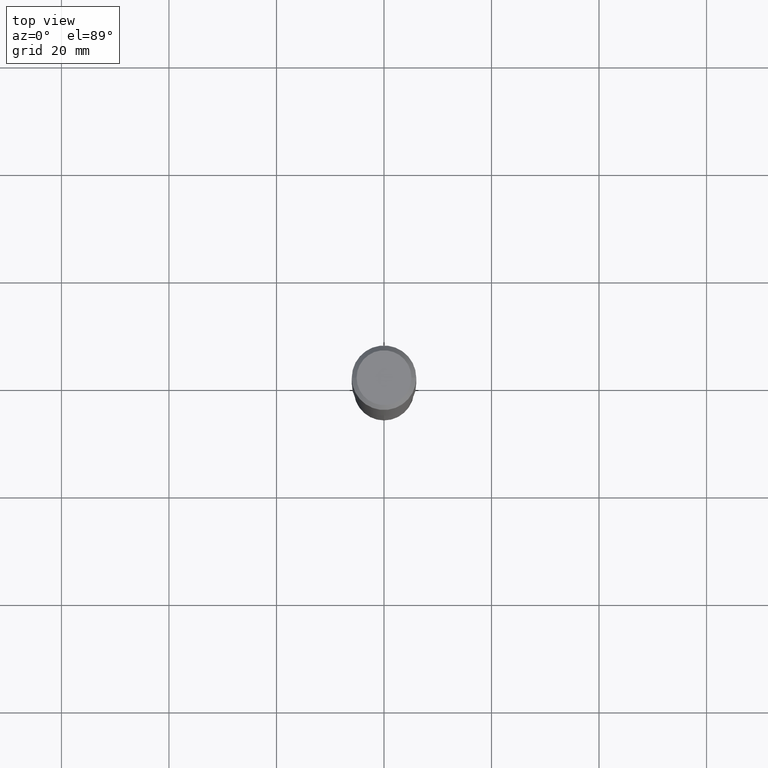
[diagram: clean part render]
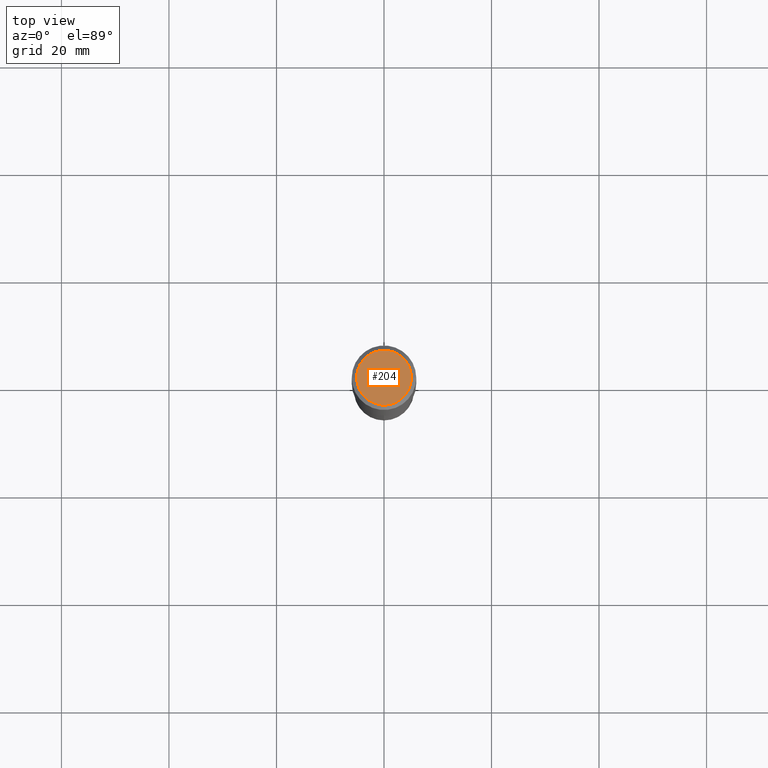
[diagram: same view with one face highlighted and labeled with its STEP entity id]
A machine part, top view. The second image highlights one B-rep face of the part: STEP entity #204.
In plain terms, the highlighted planar face has unit normal (0, -0, -1).
Its self-contained STEP definition (entity closure, byte-faithful):
#26 = ORIENTED_EDGE ( 'NONE', *, *, #423, .T. ) ;
#58 = CIRCLE ( 'NONE', #231, 0.2007700000000000040 ) ;
#61 = DIRECTION ( 'NONE',  ( -2.445468806185136597E-29, 3.491481338843145583E-15, 1.000000000000000000 ) ) ;
#77 = EDGE_CURVE ( 'NONE', #420, #88, #58, .T. ) ;
#84 = CARTESIAN_POINT ( 'NONE',  ( -1.001697619218023151E-46, 1.430158722866391908E-32, 4.096137381448114529E-18 ) ) ;
#88 = VERTEX_POINT ( 'NONE', #468 ) ;
#194 = DIRECTION ( 'NONE',  ( -2.445468806185136597E-29, 3.491481338843145583E-15, 1.000000000000000000 ) ) ;
#204 = ADVANCED_FACE ( 'NONE', ( #211 ), #245, .F. ) ;
#211 = FACE_OUTER_BOUND ( 'NONE', #445, .T. ) ;
#231 = AXIS2_PLACEMENT_3D ( 'NONE', #432, #61, #349 ) ;
#245 = PLANE ( 'NONE',  #359 ) ;
#319 = DIRECTION ( 'NONE',  ( 2.438088387897960049E-29, -3.491481338843145188E-15, -1.000000000000000000 ) ) ;
#337 = CARTESIAN_POINT ( 'NONE',  ( 0.2007700000000000040, -1.560767496960719672E-15, 4.096137381458473721E-18 ) ) ;
#339 = ORIENTED_EDGE ( 'NONE', *, *, #77, .T. ) ;
#349 = DIRECTION ( 'NONE',  ( 1.000000000000000000, -6.982962677686266711E-15, 4.876140833081945105E-29 ) ) ;
#352 = CARTESIAN_POINT ( 'NONE',  ( -5.008488096090115757E-47, 7.150793614331959538E-33, 2.048068690724057264E-18 ) ) ;
#359 = AXIS2_PLACEMENT_3D ( 'NONE', #352, #319, #463 ) ;
#360 = AXIS2_PLACEMENT_3D ( 'NONE', #84, #194, #449 ) ;
#397 = CIRCLE ( 'NONE', #360, 0.2007700000000000040 ) ;
#420 = VERTEX_POINT ( 'NONE', #337 ) ;
#423 = EDGE_CURVE ( 'NONE', #88, #420, #397, .T. ) ;
#432 = CARTESIAN_POINT ( 'NONE',  ( -1.001697619218023151E-46, 1.430158722866391908E-32, 4.096137381448114529E-18 ) ) ;
#445 = EDGE_LOOP ( 'NONE', ( #26, #339 ) ) ;
#449 = DIRECTION ( 'NONE',  ( 1.000000000000000000, -6.982962677686266711E-15, 4.876140833081945105E-29 ) ) ;
#463 = DIRECTION ( 'NONE',  ( -1.000000000000000000, 6.982962677686265922E-15, -4.876176775795935793E-29 ) ) ;
#468 = CARTESIAN_POINT ( 'NONE',  ( -0.2007700000000000040, 1.463821008716677338E-15, 4.096137381438094301E-18 ) ) ;